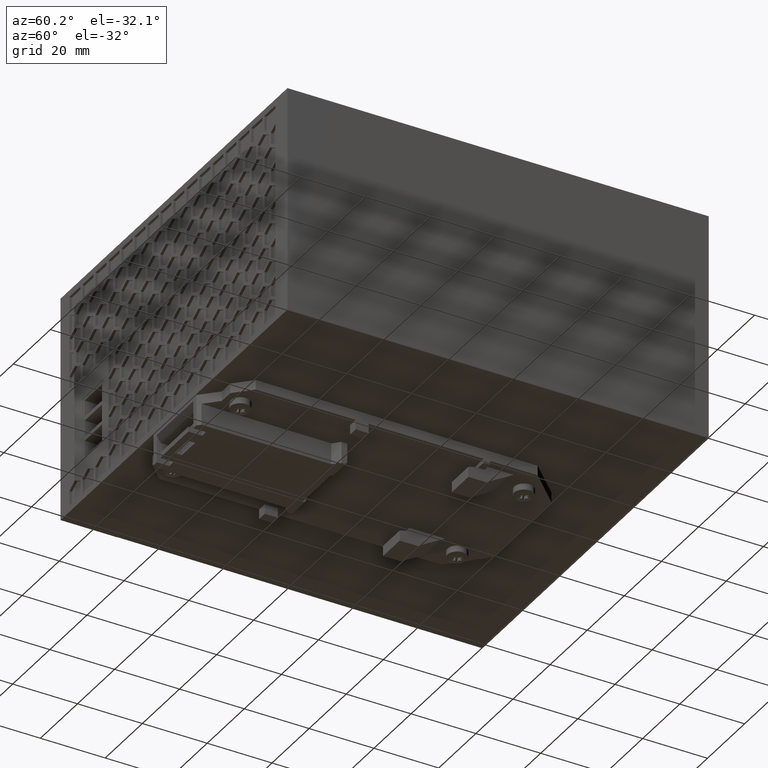
[diagram: clean part render]
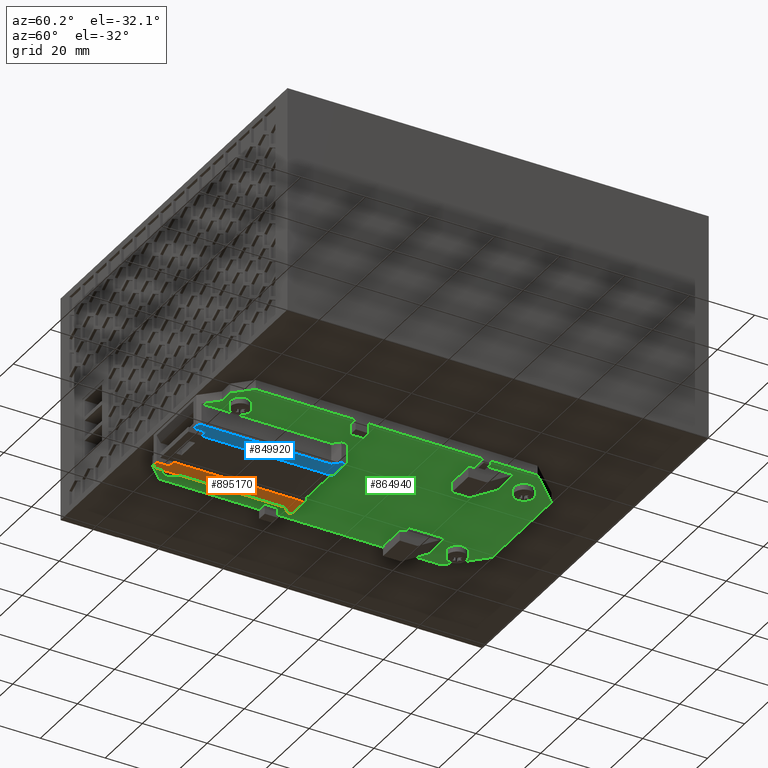
[diagram: same view with three faces highlighted in distinct colors, each labeled with its STEP entity id]
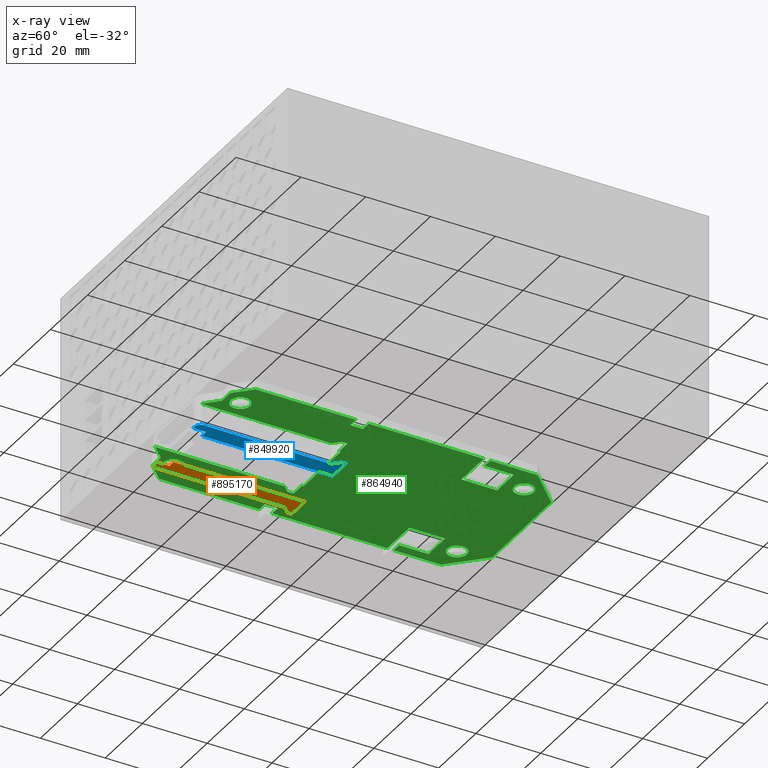
[diagram: x-ray of the same camera — body ghosted, the three highlighted faces saturated]
A machine part, auxiliary view with three faces highlighted in distinct colors.
The next image is the same camera in x-ray (body ghosted, the three faces saturated) — at least one of them is partly hidden behind the body in this view.
Their STEP definitions:

[orange] entity #895170 — the highlighted planar face has unit normal (0, 0, -1).
#852840=CARTESIAN_POINT('',(-9.59999999999991,75.5999999999896,
85.8468498908009));
#852850=VERTEX_POINT('',#852840);
#852880=CARTESIAN_POINT('',(-9.59999999999991,75.5999999999896,
-465.205708989799));
#852890=DIRECTION('',(0.,0.,-1.));
#852900=VECTOR('',#852890,1.);
#852910=LINE('',#852880,#852900);
#852920=CARTESIAN_POINT('',(-9.59999999999985,75.5999999999896,
84.6468498908012));
#852930=VERTEX_POINT('',#852920);
#852940=EDGE_CURVE('',#852850,#852930,#852910,.T.);
#853390=CARTESIAN_POINT('',(-9.59999999999991,73.5999999999895,
87.8468498908013));
#853400=VERTEX_POINT('',#853390);
#853430=CARTESIAN_POINT('',(-9.59999999999991,626.652558880509,
-465.205708989799));
#853440=DIRECTION('',(0.,-0.707106781186496,0.707106781186599));
#853450=VECTOR('',#853440,1.);
#853460=LINE('',#853430,#853450);
#853470=EDGE_CURVE('',#852850,#853400,#853460,.T.);
#853750=CARTESIAN_POINT('',(-9.59999999999991,73.5999999999897,
127.896849890801));
#853760=VERTEX_POINT('',#853750);
#853810=CARTESIAN_POINT('',(-9.59999999999991,73.5999999999896,
-465.205708989799));
#853820=DIRECTION('',(0.,0.,-1.));
#853830=VECTOR('',#853820,1.);
#853840=LINE('',#853810,#853830);
#853850=EDGE_CURVE('',#853760,#853400,#853840,.T.);
#854130=CARTESIAN_POINT('',(-9.59999999999991,72.5999999999897,
128.896849890801));
#854140=VERTEX_POINT('',#854130);
#854170=CARTESIAN_POINT('',(-9.59999999999991,52.2499999999897,
149.246849890801));
#854180=DIRECTION('',(0.,-0.707106781186549,0.707106781186546));
#854190=VECTOR('',#854180,1.);
#854200=LINE('',#854170,#854190);
#854210=EDGE_CURVE('',#853760,#854140,#854200,.T.);
#861640=CARTESIAN_POINT('',(-9.59999999999991,70.9999999999897,
128.896849890801));
#861650=VERTEX_POINT('',#861640);
#861680=CARTESIAN_POINT('',(-9.59999999999991,52.2499999999897,
128.896849890801));
#861690=DIRECTION('',(0.,1.,0.));
#861700=VECTOR('',#861690,1.);
#861710=LINE('',#861680,#861700);
#861720=EDGE_CURVE('',#861650,#854140,#861710,.T.);
#894750=CARTESIAN_POINT('',(-9.59999999999991,75.8102999999897,
130.040899890801));
#894760=DIRECTION('',(-1.,-0.,-0.));
#894770=DIRECTION('',(0.,0.,-1.));
#894780=AXIS2_PLACEMENT_3D('',#894750,#894760,#894770);
#894790=PLANE('',#894780);
#894800=ORIENTED_EDGE('',*,*,#852940,.T.);
#894810=ORIENTED_EDGE('',*,*,#853470,.F.);
#894820=ORIENTED_EDGE('',*,*,#853850,.T.);
#894830=ORIENTED_EDGE('',*,*,#854210,.F.);
#894840=ORIENTED_EDGE('',*,*,#861720,.T.);
#894850=CARTESIAN_POINT('',(-9.59999999999991,70.9999999999897,
-465.205708989799));
#894860=DIRECTION('',(0.,0.,1.));
#894870=VECTOR('',#894860,1.);
#894880=LINE('',#894850,#894870);
#894890=CARTESIAN_POINT('',(-9.59999999999991,70.9999999999897,
124.996849890801));
#894900=VERTEX_POINT('',#894890);
#894910=EDGE_CURVE('',#894900,#861650,#894880,.T.);
#894920=ORIENTED_EDGE('',*,*,#894910,.T.);
#894930=CARTESIAN_POINT('',(-9.59999999999991,52.2499999999897,
124.996849890801));
#894940=DIRECTION('',(0.,1.,0.));
#894950=VECTOR('',#894940,1.);
#894960=LINE('',#894930,#894950);
#894970=CARTESIAN_POINT('',(-9.59999999999991,68.6999999999897,
124.996849890801));
#894980=VERTEX_POINT('',#894970);
#894990=EDGE_CURVE('',#894980,#894900,#894960,.T.);
#895000=ORIENTED_EDGE('',*,*,#894990,.T.);
#895010=CARTESIAN_POINT('',(-9.59999999999991,68.6999999999897,
-465.205708989799));
#895020=DIRECTION('',(0.,0.,-1.));
#895030=VECTOR('',#895020,1.);
#895040=LINE('',#895010,#895030);
#895050=CARTESIAN_POINT('',(-9.59999999999991,68.6999999999897,
84.6468498908012));
#895060=VERTEX_POINT('',#895050);
#895070=EDGE_CURVE('',#894980,#895060,#895040,.T.);
#895080=ORIENTED_EDGE('',*,*,#895070,.F.);
#895090=CARTESIAN_POINT('',(-9.59999999999991,52.2499999999897,
84.6468498908011));
#895100=DIRECTION('',(0.,-1.,0.));
#895110=VECTOR('',#895100,1.);
#895120=LINE('',#895090,#895110);
#895130=EDGE_CURVE('',#852930,#895060,#895120,.T.);
#895140=ORIENTED_EDGE('',*,*,#895130,.T.);
#895150=EDGE_LOOP('',(#895140,#895080,#895000,#894920,#894840,#894830,
#894820,#894810,#894800));
#895160=FACE_OUTER_BOUND('',#895150,.T.);
#895170=ADVANCED_FACE('',(#895160),#894790,.T.);

[blue] entity #849920 — the highlighted planar face has unit normal (0, 0, -1).
#848450=CARTESIAN_POINT('',(-9.59999999999991,53.4999999999897,
84.6468498908011));
#848460=VERTEX_POINT('',#848450);
#848510=CARTESIAN_POINT('',(-9.59999999999985,52.2499999999897,
84.6468498908012));
#848520=DIRECTION('',(0.,1.,0.));
#848530=VECTOR('',#848520,1.);
#848540=LINE('',#848510,#848530);
#848550=CARTESIAN_POINT('',(-9.59999999999985,46.5999999999897,
84.6468498908012));
#848560=VERTEX_POINT('',#848550);
#848570=EDGE_CURVE('',#848560,#848460,#848540,.T.);
#848890=CARTESIAN_POINT('',(-9.59999999999991,46.5999999999897,
-465.205708989799));
#848900=DIRECTION('',(0.,0.,-1.));
#848910=VECTOR('',#848900,1.);
#848920=LINE('',#848890,#848910);
#848930=CARTESIAN_POINT('',(-9.59999999999991,46.5999999999897,
85.8468498908009));
#848940=VERTEX_POINT('',#848930);
#848950=EDGE_CURVE('',#848940,#848560,#848920,.T.);
#849290=CARTESIAN_POINT('',(-9.59999999999991,53.7102999999897,
83.502799890801));
#849300=DIRECTION('',(-1.,-0.,-0.));
#849310=DIRECTION('',(0.,0.,-1.));
#849320=AXIS2_PLACEMENT_3D('',#849290,#849300,#849310);
#849330=PLANE('',#849320);
#849340=CARTESIAN_POINT('',(-9.59999999999991,51.1999999999897,
-465.205708989799));
#849350=DIRECTION('',(0.,0.,1.));
#849360=VECTOR('',#849350,1.);
#849370=LINE('',#849340,#849360);
#849380=CARTESIAN_POINT('',(-9.59999999999991,51.1999999999897,
124.996849890801));
#849390=VERTEX_POINT('',#849380);
#849400=CARTESIAN_POINT('',(-9.59999999999991,51.1999999999897,
128.896849890801));
#849410=VERTEX_POINT('',#849400);
#849420=EDGE_CURVE('',#849390,#849410,#849370,.T.);
#849430=ORIENTED_EDGE('',*,*,#849420,.F.);
#849440=CARTESIAN_POINT('',(-9.59999999999991,52.2499999999897,
128.896849890801));
#849450=DIRECTION('',(0.,1.,0.));
#849460=VECTOR('',#849450,1.);
#849470=LINE('',#849440,#849460);
#849480=CARTESIAN_POINT('',(-9.59999999999991,49.59999999999,
128.896849890801));
#849490=VERTEX_POINT('',#849480);
#849500=EDGE_CURVE('',#849490,#849410,#849470,.T.);
#849510=ORIENTED_EDGE('',*,*,#849500,.T.);
#849520=CARTESIAN_POINT('',(-9.59999999999991,52.2499999999897,
131.5468498908));
#849530=DIRECTION('',(0.,-0.707106781186602,-0.707106781186493));
#849540=VECTOR('',#849530,1.);
#849550=LINE('',#849520,#849540);
#849560=CARTESIAN_POINT('',(-9.59999999999991,48.5999999999897,
127.896849890801));
#849570=VERTEX_POINT('',#849560);
#849580=EDGE_CURVE('',#849490,#849570,#849550,.T.);
#849590=ORIENTED_EDGE('',*,*,#849580,.F.);
#849600=CARTESIAN_POINT('',(-9.59999999999991,48.5999999999897,
-465.205708989799));
#849610=DIRECTION('',(0.,0.,-1.));
#849620=VECTOR('',#849610,1.);
#849630=LINE('',#849600,#849620);
#849640=CARTESIAN_POINT('',(-9.59999999999991,48.5999999999898,
87.8468498908013));
#849650=VERTEX_POINT('',#849640);
#849660=EDGE_CURVE('',#849570,#849650,#849630,.T.);
#849670=ORIENTED_EDGE('',*,*,#849660,.F.);
#849680=CARTESIAN_POINT('',(-9.59999999999991,-504.452558880529,
-465.205708989799));
#849690=DIRECTION('',(0.,-0.707106781186495,-0.7071067811866));
#849700=VECTOR('',#849690,1.);
#849710=LINE('',#849680,#849700);
#849720=EDGE_CURVE('',#849650,#848940,#849710,.T.);
#849730=ORIENTED_EDGE('',*,*,#849720,.F.);
#849740=ORIENTED_EDGE('',*,*,#848950,.F.);
#849750=ORIENTED_EDGE('',*,*,#848570,.F.);
#849760=CARTESIAN_POINT('',(-9.59999999999991,53.4999999999897,
-465.205708989799));
#849770=DIRECTION('',(0.,0.,1.));
#849780=VECTOR('',#849770,1.);
#849790=LINE('',#849760,#849780);
#849800=CARTESIAN_POINT('',(-9.59999999999991,53.4999999999897,
124.996849890801));
#849810=VERTEX_POINT('',#849800);
#849820=EDGE_CURVE('',#848460,#849810,#849790,.T.);
#849830=ORIENTED_EDGE('',*,*,#849820,.F.);
#849840=CARTESIAN_POINT('',(-9.59999999999991,52.2499999999897,
124.996849890801));
#849850=DIRECTION('',(0.,1.,0.));
#849860=VECTOR('',#849850,1.);
#849870=LINE('',#849840,#849860);
#849880=EDGE_CURVE('',#849390,#849810,#849870,.T.);
#849890=ORIENTED_EDGE('',*,*,#849880,.T.);
#849900=EDGE_LOOP('',(#849890,#849830,#849750,#849740,#849730,#849670,
#849590,#849510,#849430));
#849910=FACE_OUTER_BOUND('',#849900,.T.);
#849920=ADVANCED_FACE('',(#849910),#849330,.T.);

[green] entity #864940 — the highlighted planar face has unit normal (0, 0, -1).
#849010=CARTESIAN_POINT('',(-2.99999999999994,46.59999999999,
85.8468498908013));
#849020=VERTEX_POINT('',#849010);
#849050=CARTESIAN_POINT('',(-2.99999999999994,46.5999999999897,
-465.205708989799));
#849060=DIRECTION('',(0.,0.,1.));
#849070=VECTOR('',#849060,1.);
#849080=LINE('',#849050,#849070);
#849090=CARTESIAN_POINT('',(-2.99999999999994,46.5999999999897,
84.046849890801));
#849100=VERTEX_POINT('',#849090);
#849110=EDGE_CURVE('',#849100,#849020,#849080,.T.);
#850520=CARTESIAN_POINT('',(-2.99999999999994,52.2499999999897,
84.046849890801));
#850530=DIRECTION('',(0.,1.,0.));
#850540=VECTOR('',#850530,1.);
#850550=LINE('',#850520,#850540);
#850560=CARTESIAN_POINT('',(-2.99999999999994,51.0999999999878,
84.046849890801));
#850570=VERTEX_POINT('',#850560);
#850580=EDGE_CURVE('',#849100,#850570,#850550,.T.);
#851330=CARTESIAN_POINT('',(-2.99999999999994,51.0999999999878,
-465.205708989799));
#851340=DIRECTION('',(0.,0.,-1.));
#851350=VECTOR('',#851340,1.);
#851360=LINE('',#851330,#851350);
#851370=CARTESIAN_POINT('',(-2.99999999999994,51.0999999999878,
83.546849890801));
#851380=VERTEX_POINT('',#851370);
#851390=EDGE_CURVE('',#850570,#851380,#851360,.T.);
#851760=CARTESIAN_POINT('',(-2.99999999999994,71.0999999999878,
83.546849890801));
#851770=VERTEX_POINT('',#851760);
#851870=CARTESIAN_POINT('',(-2.99999999999994,52.2499999999897,
83.546849890801));
#851880=DIRECTION('',(0.,1.,0.));
#851890=VECTOR('',#851880,1.);
#851900=LINE('',#851870,#851890);
#851910=EDGE_CURVE('',#851380,#851770,#851900,.T.);
#852490=CARTESIAN_POINT('',(-2.99999999999994,71.0999999999878,
-465.205708989799));
#852500=DIRECTION('',(0.,0.,-1.));
#852510=VECTOR('',#852500,1.);
#852520=LINE('',#852490,#852510);
#852530=CARTESIAN_POINT('',(-2.99999999999994,71.0999999999878,
84.046849890801));
#852540=VERTEX_POINT('',#852530);
#852550=EDGE_CURVE('',#852540,#851770,#852520,.T.);
#852820=CARTESIAN_POINT('',(-2.99999999999994,75.5999999999893,
85.8468498908011));
#852830=VERTEX_POINT('',#852820);
#853080=CARTESIAN_POINT('',(-2.99999999999994,75.5999999999897,
84.046849890801));
#853090=VERTEX_POINT('',#853080);
#853120=CARTESIAN_POINT('',(-2.99999999999994,75.5999999999896,
-465.205708989799));
#853130=DIRECTION('',(0.,0.,1.));
#853140=VECTOR('',#853130,1.);
#853150=LINE('',#853120,#853140);
#853160=EDGE_CURVE('',#853090,#852830,#853150,.T.);
#853370=CARTESIAN_POINT('',(-2.99999999999994,73.5999999999895,
87.8468498908014));
#853380=VERTEX_POINT('',#853370);
#853500=CARTESIAN_POINT('',(-2.99999999999994,626.652558880509,
-465.205708989799));
#853510=DIRECTION('',(0.,0.707106781186496,-0.707106781186599));
#853520=VECTOR('',#853510,1.);
#853530=LINE('',#853500,#853520);
#853540=EDGE_CURVE('',#853380,#852830,#853530,.T.);
#853770=CARTESIAN_POINT('',(-2.99999999999994,73.5999999999896,
127.896849890801));
#853780=VERTEX_POINT('',#853770);
#853880=CARTESIAN_POINT('',(-2.99999999999994,73.5999999999896,
-465.205708989799));
#853890=DIRECTION('',(0.,0.,-1.));
#853900=VECTOR('',#853890,1.);
#853910=LINE('',#853880,#853900);
#853920=EDGE_CURVE('',#853780,#853380,#853910,.T.);
#854240=CARTESIAN_POINT('',(-2.99999999999994,52.2499999999897,
149.246849890801));
#854250=DIRECTION('',(0.,-0.707106781186549,0.707106781186546));
#854260=VECTOR('',#854250,1.);
#854270=LINE('',#854240,#854260);
#854280=CARTESIAN_POINT('',(-2.99999999999994,77.5999999999897,
123.896849890801));
#854290=VERTEX_POINT('',#854280);
#854300=EDGE_CURVE('',#854290,#853780,#854270,.T.);
#854580=CARTESIAN_POINT('',(-2.99999999999994,82.0999999999898,
123.896849890801));
#854590=VERTEX_POINT('',#854580);
#854640=CARTESIAN_POINT('',(-2.99999999999994,52.2499999999897,
123.896849890801));
#854650=DIRECTION('',(0.,1.,0.));
#854660=VECTOR('',#854650,1.);
#854670=LINE('',#854640,#854660);
#854680=EDGE_CURVE('',#854290,#854590,#854670,.T.);
#854870=CARTESIAN_POINT('',(-2.99999999999994,671.20255888051,
-465.205708989799));
#854880=DIRECTION('',(0.,-0.707106781186499,0.707106781186596));
#854890=VECTOR('',#854880,1.);
#854900=LINE('',#854870,#854890);
#854910=CARTESIAN_POINT('',(-2.99999999999994,87.0999999999891,
118.896849890801));
#854920=VERTEX_POINT('',#854910);
#854930=EDGE_CURVE('',#854920,#854590,#854900,.T.);
#855200=CARTESIAN_POINT('',(-2.99999999999994,87.0999999999896,
88.0468498908008));
#855210=VERTEX_POINT('',#855200);
#855380=CARTESIAN_POINT('',(-2.99999999999994,87.0999999999896,
84.046849890801));
#855390=VERTEX_POINT('',#855380);
#855420=CARTESIAN_POINT('',(-2.99999999999994,87.0999999999896,
-465.205708989799));
#855430=DIRECTION('',(0.,0.,-1.));
#855440=VECTOR('',#855430,1.);
#855450=LINE('',#855420,#855440);
#855460=CARTESIAN_POINT('',(-2.99999999999994,87.0999999999896,
48.546849890801));
#855470=VERTEX_POINT('',#855460);
#855480=EDGE_CURVE('',#855390,#855470,#855450,.T.);
#855700=CARTESIAN_POINT('',(-2.99999999999994,87.0999999999897,
46.546849890801));
#855710=VERTEX_POINT('',#855700);
#855740=CARTESIAN_POINT('',(-2.99999999999994,87.0999999999896,
-465.205708989799));
#855750=DIRECTION('',(0.,0.,-1.));
#855760=VECTOR('',#855750,1.);
#855770=LINE('',#855740,#855760);
#855780=CARTESIAN_POINT('',(-2.99999999999994,87.0999999999897,
31.896849890801));
#855790=VERTEX_POINT('',#855780);
#855800=EDGE_CURVE('',#855710,#855790,#855770,.T.);
#855900=CARTESIAN_POINT('',(-2.99999999999994,87.0999999999896,
-465.205708989799));
#855910=DIRECTION('',(0.,0.,-1.));
#855920=VECTOR('',#855910,1.);
#855930=LINE('',#855900,#855920);
#855940=EDGE_CURVE('',#854920,#855210,#855930,.T.);
#856110=CARTESIAN_POINT('',(-2.99999999999994,-410.00255888061,
-465.205708989799));
#856120=DIRECTION('',(0.,0.707106781186547,0.707106781186548));
#856130=VECTOR('',#856120,1.);
#856140=LINE('',#856110,#856130);
#856150=CARTESIAN_POINT('',(-2.99999999999994,77.0999999999897,
21.896849890801));
#856160=VERTEX_POINT('',#856150);
#856170=EDGE_CURVE('',#856160,#855790,#856140,.T.);
#856460=CARTESIAN_POINT('',(-2.99999999999994,45.0999999999897,
21.896849890801));
#856470=VERTEX_POINT('',#856460);
#856520=CARTESIAN_POINT('',(-2.99999999999994,52.2499999999897,
21.896849890801));
#856530=DIRECTION('',(0.,1.,0.));
#856540=VECTOR('',#856530,1.);
#856550=LINE('',#856520,#856540);
#856560=EDGE_CURVE('',#856470,#856160,#856550,.T.);
#856730=CARTESIAN_POINT('',(-2.99999999999994,532.202558880589,
-465.205708989799));
#856740=DIRECTION('',(0.,0.707106781186547,-0.707106781186548));
#856750=VECTOR('',#856740,1.);
#856760=LINE('',#856730,#856750);
#856770=CARTESIAN_POINT('',(-2.99999999999994,35.0999999999893,
31.8968498908013));
#856780=VERTEX_POINT('',#856770);
#856790=EDGE_CURVE('',#856780,#856470,#856760,.T.);
#857180=CARTESIAN_POINT('',(-2.99999999999994,75.0999999999896,
37.5468498908009));
#857190=VERTEX_POINT('',#857180);
#857220=CARTESIAN_POINT('',(-2.99999999999994,52.2499999999897,
37.5468498908008));
#857230=DIRECTION('',(0.,1.,0.));
#857240=VECTOR('',#857230,1.);
#857250=LINE('',#857220,#857240);
#857260=CARTESIAN_POINT('',(-2.99999999999994,84.0999999999897,
37.5468498908009));
#857270=VERTEX_POINT('',#857260);
#857280=EDGE_CURVE('',#857190,#857270,#857250,.T.);
#857930=CARTESIAN_POINT('',(-2.99999999999994,75.0999999999896,
48.546849890801));
#857940=VERTEX_POINT('',#857930);
#858220=CARTESIAN_POINT('',(-2.99999999999994,52.2499999999897,
48.546849890801));
#858230=DIRECTION('',(0.,1.,0.));
#858240=VECTOR('',#858230,1.);
#858250=LINE('',#858220,#858240);
#858260=EDGE_CURVE('',#857940,#855470,#858250,.T.);
#858900=CARTESIAN_POINT('',(-2.99999999999994,75.0999999999896,
-465.205708989799));
#858910=DIRECTION('',(0.,0.,1.));
#858920=VECTOR('',#858910,1.);
#858930=LINE('',#858900,#858920);
#858940=EDGE_CURVE('',#857190,#857940,#858930,.T.);
#859720=CARTESIAN_POINT('',(-2.99999999999994,84.0999999999896,
-465.205708989799));
#859730=DIRECTION('',(0.,0.,-1.));
#859740=VECTOR('',#859730,1.);
#859750=LINE('',#859720,#859740);
#859760=CARTESIAN_POINT('',(-2.99999999999994,84.0999999999896,
46.546849890801));
#859770=VERTEX_POINT('',#859760);
#859780=EDGE_CURVE('',#859770,#857270,#859750,.T.);
#860050=CARTESIAN_POINT('',(-2.99999999999994,52.2499999999897,
46.546849890801));
#860060=DIRECTION('',(0.,1.,0.));
#860070=VECTOR('',#860060,1.);
#860080=LINE('',#860050,#860070);
#860090=EDGE_CURVE('',#859770,#855710,#860080,.T.);
#860260=CARTESIAN_POINT('',(-2.99999999999994,52.2499999999897,
88.0468498908011));
#860270=DIRECTION('',(0.,1.,0.));
#860280=VECTOR('',#860270,1.);
#860290=LINE('',#860260,#860280);
#860300=CARTESIAN_POINT('',(-2.99999999999994,84.0999999999896,
88.0468498908008));
#860310=VERTEX_POINT('',#860300);
#860320=EDGE_CURVE('',#860310,#855210,#860290,.T.);
#860650=CARTESIAN_POINT('',(-2.99999999999994,84.0999999999896,
-465.205708989799));
#860660=DIRECTION('',(0.,0.,1.));
#860670=VECTOR('',#860660,1.);
#860680=LINE('',#860650,#860670);
#860690=CARTESIAN_POINT('',(-2.99999999999994,84.0999999999896,
84.046849890801));
#860700=VERTEX_POINT('',#860690);
#860710=EDGE_CURVE('',#860700,#860310,#860680,.T.);
#861030=CARTESIAN_POINT('',(-2.99999999999994,52.2499999999897,
84.046849890801));
#861040=DIRECTION('',(0.,-1.,0.));
#861050=VECTOR('',#861040,1.);
#861060=LINE('',#861030,#861050);
#861070=EDGE_CURVE('',#855390,#860700,#861060,.T.);
#862080=CARTESIAN_POINT('',(-2.99999999999994,44.5999999999896,
123.896849890801));
#862090=VERTEX_POINT('',#862080);
#862120=CARTESIAN_POINT('',(-2.99999999999994,52.2499999999897,
131.5468498908));
#862130=DIRECTION('',(0.,-0.707106781186602,-0.707106781186493));
#862140=VECTOR('',#862130,1.);
#862150=LINE('',#862120,#862140);
#862160=CARTESIAN_POINT('',(-2.99999999999994,48.5999999999897,
127.896849890801));
#862170=VERTEX_POINT('',#862160);
#862180=EDGE_CURVE('',#862170,#862090,#862150,.T.);
#862490=CARTESIAN_POINT('',(-2.99999999999994,48.5999999999898,
87.8468498908013));
#862500=VERTEX_POINT('',#862490);
#862530=CARTESIAN_POINT('',(-2.99999999999994,-504.452558880529,
-465.205708989799));
#862540=DIRECTION('',(0.,0.707106781186495,0.7071067811866));
#862550=VECTOR('',#862540,1.);
#862560=LINE('',#862530,#862550);
#862570=EDGE_CURVE('',#849020,#862500,#862560,.T.);
#862700=CARTESIAN_POINT('',(-2.99999999999994,33.7621999999893,
130.584649890801));
#862710=DIRECTION('',(-1.,-0.,-0.));
#862720=DIRECTION('',(0.,0.,-1.));
#862730=AXIS2_PLACEMENT_3D('',#862700,#862710,#862720);
#862740=PLANE('',#862730);
#862750=ORIENTED_EDGE('',*,*,#858260,.F.);
#862760=ORIENTED_EDGE('',*,*,#855480,.T.);
#862770=ORIENTED_EDGE('',*,*,#861070,.F.);
#862780=ORIENTED_EDGE('',*,*,#860710,.F.);
#862790=ORIENTED_EDGE('',*,*,#860320,.F.);
#862800=ORIENTED_EDGE('',*,*,#855940,.T.);
#862810=ORIENTED_EDGE('',*,*,#854930,.F.);
#862820=ORIENTED_EDGE('',*,*,#854680,.T.);
#862830=ORIENTED_EDGE('',*,*,#854300,.F.);
#862840=ORIENTED_EDGE('',*,*,#853920,.F.);
#862850=ORIENTED_EDGE('',*,*,#853540,.F.);
#862860=ORIENTED_EDGE('',*,*,#853160,.T.);
#862870=CARTESIAN_POINT('',(-2.99999999999994,52.2499999999897,
84.046849890801));
#862880=DIRECTION('',(0.,1.,0.));
#862890=VECTOR('',#862880,1.);
#862900=LINE('',#862870,#862890);
#862910=EDGE_CURVE('',#852540,#853090,#862900,.T.);
#862920=ORIENTED_EDGE('',*,*,#862910,.T.);
#862930=ORIENTED_EDGE('',*,*,#852550,.F.);
#862940=ORIENTED_EDGE('',*,*,#851910,.T.);
#862950=ORIENTED_EDGE('',*,*,#851390,.T.);
#862960=ORIENTED_EDGE('',*,*,#850580,.T.);
#862970=ORIENTED_EDGE('',*,*,#849110,.F.);
#862980=ORIENTED_EDGE('',*,*,#862570,.F.);
#862990=CARTESIAN_POINT('',(-2.99999999999994,48.5999999999897,
-465.205708989799));
#863000=DIRECTION('',(0.,0.,1.));
#863010=VECTOR('',#863000,1.);
#863020=LINE('',#862990,#863010);
#863030=EDGE_CURVE('',#862500,#862170,#863020,.T.);
#863040=ORIENTED_EDGE('',*,*,#863030,.F.);
#863050=ORIENTED_EDGE('',*,*,#862180,.F.);
#863060=CARTESIAN_POINT('',(-2.99999999999994,52.2499999999897,
123.896849890801));
#863070=DIRECTION('',(0.,1.,0.));
#863080=VECTOR('',#863070,1.);
#863090=LINE('',#863060,#863080);
#863100=CARTESIAN_POINT('',(-2.99999999999994,40.0999999999897,
123.896849890801));
#863110=VERTEX_POINT('',#863100);
#863120=EDGE_CURVE('',#863110,#862090,#863090,.T.);
#863130=ORIENTED_EDGE('',*,*,#863120,.T.);
#863140=CARTESIAN_POINT('',(-2.99999999999994,52.2499999999897,
136.046849890801));
#863150=DIRECTION('',(0.,-0.707106781186553,-0.707106781186542));
#863160=VECTOR('',#863150,1.);
#863170=LINE('',#863140,#863160);
#863180=CARTESIAN_POINT('',(-2.99999999999994,35.0999999999897,
118.896849890801));
#863190=VERTEX_POINT('',#863180);
#863200=EDGE_CURVE('',#863110,#863190,#863170,.T.);
#863210=ORIENTED_EDGE('',*,*,#863200,.F.);
#863220=CARTESIAN_POINT('',(-2.99999999999994,35.0999999999897,
-465.205708989799));
#863230=DIRECTION('',(0.,0.,-1.));
#863240=VECTOR('',#863230,1.);
#863250=LINE('',#863220,#863240);
#863260=CARTESIAN_POINT('',(-2.99999999999994,35.0999999999897,
88.0468498908008));
#863270=VERTEX_POINT('',#863260);
#863280=EDGE_CURVE('',#863190,#863270,#863250,.T.);
#863290=ORIENTED_EDGE('',*,*,#863280,.F.);
#863300=CARTESIAN_POINT('',(-2.99999999999994,52.2499999999897,
88.0468498908011));
#863310=DIRECTION('',(0.,-1.,0.));
#863320=VECTOR('',#863310,1.);
#863330=LINE('',#863300,#863320);
#863340=CARTESIAN_POINT('',(-2.99999999999994,38.0999999999897,
88.046849890801));
#863350=VERTEX_POINT('',#863340);
#863360=EDGE_CURVE('',#863350,#863270,#863330,.T.);
#863370=ORIENTED_EDGE('',*,*,#863360,.T.);
#863380=CARTESIAN_POINT('',(-2.99999999999994,38.0999999999897,
-465.205708989799));
#863390=DIRECTION('',(0.,0.,-1.));
#863400=VECTOR('',#863390,1.);
#863410=LINE('',#863380,#863400);
#863420=CARTESIAN_POINT('',(-2.99999999999994,38.0999999999897,
84.046849890801));
#863430=VERTEX_POINT('',#863420);
#863440=EDGE_CURVE('',#863350,#863430,#863410,.T.);
#863450=ORIENTED_EDGE('',*,*,#863440,.F.);
#863460=CARTESIAN_POINT('',(-2.99999999999994,52.2499999999897,
84.046849890801));
#863470=DIRECTION('',(0.,-1.,0.));
#863480=VECTOR('',#863470,1.);
#863490=LINE('',#863460,#863480);
#863500=CARTESIAN_POINT('',(-2.99999999999994,35.0999999999897,
84.046849890801));
#863510=VERTEX_POINT('',#863500);
#863520=EDGE_CURVE('',#863430,#863510,#863490,.T.);
#863530=ORIENTED_EDGE('',*,*,#863520,.F.);
#863540=CARTESIAN_POINT('',(-2.99999999999994,35.0999999999897,
-465.205708989799));
#863550=DIRECTION('',(0.,0.,-1.));
#863560=VECTOR('',#863550,1.);
#863570=LINE('',#863540,#863560);
#863580=CARTESIAN_POINT('',(-2.99999999999994,35.0999999999897,
48.546849890801));
#863590=VERTEX_POINT('',#863580);
#863600=EDGE_CURVE('',#863510,#863590,#863570,.T.);
#863610=ORIENTED_EDGE('',*,*,#863600,.F.);
#863620=CARTESIAN_POINT('',(-2.99999999999994,52.2499999999897,
48.546849890801));
#863630=DIRECTION('',(0.,1.,0.));
#863640=VECTOR('',#863630,1.);
#863650=LINE('',#863620,#863640);
#863660=CARTESIAN_POINT('',(-2.99999999999994,47.0999999999897,
48.546849890801));
#863670=VERTEX_POINT('',#863660);
#863680=EDGE_CURVE('',#863590,#863670,#863650,.T.);
#863690=ORIENTED_EDGE('',*,*,#863680,.F.);
#863700=CARTESIAN_POINT('',(-2.99999999999994,47.0999999999897,
-465.205708989799));
#863710=DIRECTION('',(0.,0.,-1.));
#863720=VECTOR('',#863710,1.);
#863730=LINE('',#863700,#863720);
#863740=CARTESIAN_POINT('',(-2.99999999999994,47.0999999999897,
37.5468498908009));
#863750=VERTEX_POINT('',#863740);
#863760=EDGE_CURVE('',#863670,#863750,#863730,.T.);
#863770=ORIENTED_EDGE('',*,*,#863760,.F.);
#863780=CARTESIAN_POINT('',(-2.99999999999994,52.2499999999897,
37.5468498908009));
#863790=DIRECTION('',(0.,-1.,0.));
#863800=VECTOR('',#863790,1.);
#863810=LINE('',#863780,#863800);
#863820=CARTESIAN_POINT('',(-2.99999999999994,38.0999999999897,
37.5468498908009));
#863830=VERTEX_POINT('',#863820);
#863840=EDGE_CURVE('',#863750,#863830,#863810,.T.);
#863850=ORIENTED_EDGE('',*,*,#863840,.F.);
#863860=CARTESIAN_POINT('',(-2.99999999999994,38.0999999999897,
-465.205708989799));
#863870=DIRECTION('',(0.,0.,1.));
#863880=VECTOR('',#863870,1.);
#863890=LINE('',#863860,#863880);
#863900=CARTESIAN_POINT('',(-2.99999999999994,38.0999999999897,
46.546849890801));
#863910=VERTEX_POINT('',#863900);
#863920=EDGE_CURVE('',#863830,#863910,#863890,.T.);
#863930=ORIENTED_EDGE('',*,*,#863920,.F.);
#863940=CARTESIAN_POINT('',(-2.99999999999994,52.2499999999897,
46.546849890801));
#863950=DIRECTION('',(0.,-1.,0.));
#863960=VECTOR('',#863950,1.);
#863970=LINE('',#863940,#863960);
#863980=CARTESIAN_POINT('',(-2.99999999999994,35.0999999999897,
46.546849890801));
#863990=VERTEX_POINT('',#863980);
#864000=EDGE_CURVE('',#863910,#863990,#863970,.T.);
#864010=ORIENTED_EDGE('',*,*,#864000,.F.);
#864020=CARTESIAN_POINT('',(-2.99999999999994,35.0999999999897,
-465.205708989799));
#864030=DIRECTION('',(0.,0.,-1.));
#864040=VECTOR('',#864030,1.);
#864050=LINE('',#864020,#864040);
#864060=EDGE_CURVE('',#863990,#856780,#864050,.T.);
#864070=ORIENTED_EDGE('',*,*,#864060,.F.);
#864080=ORIENTED_EDGE('',*,*,#856790,.F.);
#864090=ORIENTED_EDGE('',*,*,#856560,.F.);
#864100=ORIENTED_EDGE('',*,*,#856170,.F.);
#864110=ORIENTED_EDGE('',*,*,#855800,.T.);
#864120=ORIENTED_EDGE('',*,*,#860090,.T.);
#864130=ORIENTED_EDGE('',*,*,#859780,.F.);
#864140=ORIENTED_EDGE('',*,*,#857280,.T.);
#864150=ORIENTED_EDGE('',*,*,#858940,.F.);
#864160=EDGE_LOOP('',(#864150,#864140,#864130,#864120,#864110,#864100,
#864090,#864080,#864070,#864010,#863930,#863850,#863770,#863690,#863610,
#863530,#863450,#863370,#863290,#863210,#863130,#863050,#863040,#862980,
#862970,#862960,#862950,#862940,#862930,#862920,#862860,#862850,#862840,
#862830,#862820,#862810,#862800,#862790,#862780,#862770,#862760,#862750)
);
#864170=FACE_OUTER_BOUND('',#864160,.T.);
#864180=CARTESIAN_POINT('',(-2.99999999999994,79.0999999999917,
31.5468498908014));
#864190=DIRECTION('',(1.,0.,0.));
#864200=DIRECTION('',(0.,0.,1.));
#864210=AXIS2_PLACEMENT_3D('',#864180,#864190,#864200);
#864220=CIRCLE('',#864210,2.99999999999996);
#864230=CARTESIAN_POINT('',(-2.99999999999994,79.0999999999917,
34.5468498908013));
#864240=VERTEX_POINT('',#864230);
#864250=CARTESIAN_POINT('',(-2.99999999999994,79.0999999999917,
28.5468498908014));
#864260=VERTEX_POINT('',#864250);
#864270=EDGE_CURVE('',#864240,#864260,#864220,.T.);
#864280=ORIENTED_EDGE('',*,*,#864270,.T.);
#864290=CARTESIAN_POINT('',(-2.99999999999994,82.0999999999917,
31.5468498908014));
#864300=VERTEX_POINT('',#864290);
#864310=EDGE_CURVE('',#864300,#864240,#864220,.T.);
#864320=ORIENTED_EDGE('',*,*,#864310,.T.);
#864330=EDGE_CURVE('',#864260,#864300,#864220,.T.);
#864340=ORIENTED_EDGE('',*,*,#864330,.T.);
#864350=EDGE_LOOP('',(#864340,#864320,#864280));
#864360=FACE_BOUND('',#864350,.T.);
#864370=CARTESIAN_POINT('',(-2.99999999999994,43.0999999999916,
31.5468498908014));
#864380=DIRECTION('',(1.,0.,0.));
#864390=DIRECTION('',(0.,0.,1.));
#864400=AXIS2_PLACEMENT_3D('',#864370,#864380,#864390);
#864410=CIRCLE('',#864400,2.99999999999996);
#864420=CARTESIAN_POINT('',(-2.99999999999994,43.0999999999916,
34.5468498908014));
#864430=VERTEX_POINT('',#864420);
#864440=CARTESIAN_POINT('',(-2.99999999999994,43.0999999999916,
28.5468498908014));
#864450=VERTEX_POINT('',#864440);
#864460=EDGE_CURVE('',#864430,#864450,#864410,.T.);
#864470=ORIENTED_EDGE('',*,*,#864460,.T.);
#864480=CARTESIAN_POINT('',(-2.99999999999994,46.0999999999917,
31.5468498908014));
#864490=VERTEX_POINT('',#864480);
#864500=EDGE_CURVE('',#864490,#864430,#864410,.T.);
#864510=ORIENTED_EDGE('',*,*,#864500,.T.);
#864520=EDGE_CURVE('',#864450,#864490,#864410,.T.);
#864530=ORIENTED_EDGE('',*,*,#864520,.T.);
#864540=EDGE_LOOP('',(#864530,#864510,#864470));
#864550=FACE_BOUND('',#864540,.T.);
#864560=CARTESIAN_POINT('',(-2.99999999999994,79.0999999999917,
119.046849890802));
#864570=DIRECTION('',(1.,0.,0.));
#864580=DIRECTION('',(0.,0.,1.));
#864590=AXIS2_PLACEMENT_3D('',#864560,#864570,#864580);
#864600=CIRCLE('',#864590,3.00000000000013);
#864610=CARTESIAN_POINT('',(-2.99999999999994,79.0999999999917,
116.046849890801));
#864620=VERTEX_POINT('',#864610);
#864630=CARTESIAN_POINT('',(-2.99999999999994,79.0999999999917,
122.046849890802));
#864640=VERTEX_POINT('',#864630);
#864650=EDGE_CURVE('',#864620,#864640,#864600,.T.);
#864660=ORIENTED_EDGE('',*,*,#864650,.T.);
#864670=CARTESIAN_POINT('',(-2.99999999999994,76.0999999999917,
119.046849890801));
#864680=VERTEX_POINT('',#864670);
#864690=EDGE_CURVE('',#864680,#864620,#864600,.T.);
#864700=ORIENTED_EDGE('',*,*,#864690,.T.);
#864710=EDGE_CURVE('',#864640,#864680,#864600,.T.);
#864720=ORIENTED_EDGE('',*,*,#864710,.T.);
#864730=EDGE_LOOP('',(#864720,#864700,#864660));
#864740=FACE_BOUND('',#864730,.T.);
#864750=CARTESIAN_POINT('',(-2.99999999999994,43.0999999999917,
119.046849890801));
#864760=DIRECTION('',(1.,0.,0.));
#864770=DIRECTION('',(0.,0.,1.));
#864780=AXIS2_PLACEMENT_3D('',#864750,#864760,#864770);
#864790=CIRCLE('',#864780,2.99999999999991);
#864800=CARTESIAN_POINT('',(-2.99999999999994,43.0999999999917,
116.046849890802));
#864810=VERTEX_POINT('',#864800);
#864820=CARTESIAN_POINT('',(-2.99999999999994,43.0999999999917,
122.046849890801));
#864830=VERTEX_POINT('',#864820);
#864840=EDGE_CURVE('',#864810,#864830,#864790,.T.);
#864850=ORIENTED_EDGE('',*,*,#864840,.T.);
#864860=CARTESIAN_POINT('',(-2.99999999999994,40.0999999999917,
119.046849890801));
#864870=VERTEX_POINT('',#864860);
#864880=EDGE_CURVE('',#864870,#864810,#864790,.T.);
#864890=ORIENTED_EDGE('',*,*,#864880,.T.);
#864900=EDGE_CURVE('',#864830,#864870,#864790,.T.);
#864910=ORIENTED_EDGE('',*,*,#864900,.T.);
#864920=EDGE_LOOP('',(#864910,#864890,#864850));
#864930=FACE_BOUND('',#864920,.T.);
#864940=ADVANCED_FACE('',(#864170,#864360,#864550,#864740,#864930),
#862740,.T.);